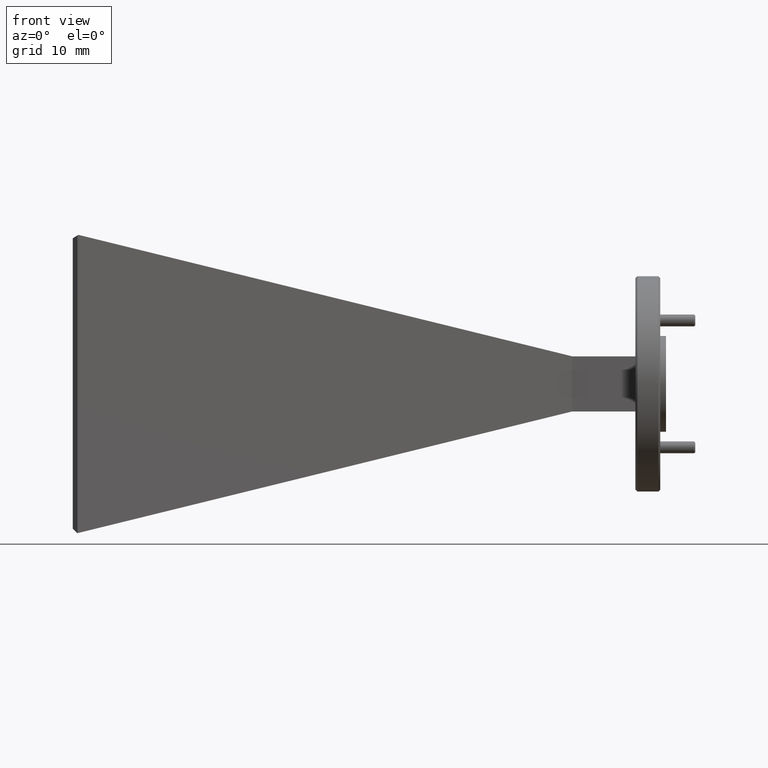
[diagram: clean part render]
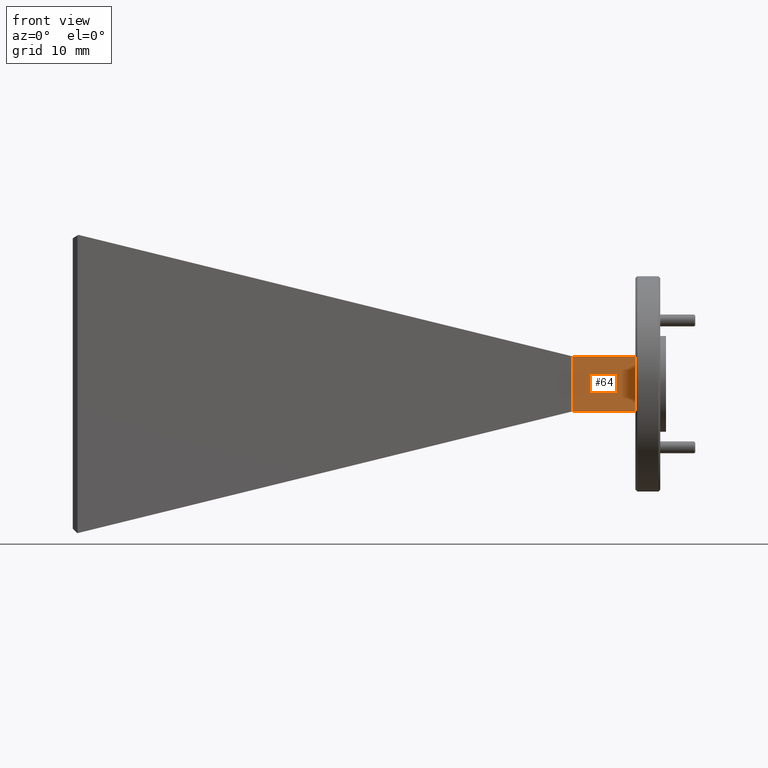
[diagram: same view with one face highlighted and labeled with its STEP entity id]
A machine part, front view. The second image highlights one B-rep face of the part: STEP entity #64.
In plain terms, the highlighted planar face has unit normal (0, 1, 0).
Its self-contained STEP definition (entity closure, byte-faithful):
#64 = ADVANCED_FACE ( 'NONE', ( #2309 ), #1609, .F. ) ;
#95 = VERTEX_POINT ( 'NONE', #1595 ) ;
#199 = DIRECTION ( 'NONE',  ( 1.000000000000000000, 0.0000000000000000000, -0.0000000000000000000 ) ) ;
#274 = VECTOR ( 'NONE', #444, 39.37007874015748100 ) ;
#292 = ORIENTED_EDGE ( 'NONE', *, *, #1197, .F. ) ;
#373 = ORIENTED_EDGE ( 'NONE', *, *, #530, .F. ) ;
#444 = DIRECTION ( 'NONE',  ( -0.0000000000000000000, -0.0000000000000000000, -1.000000000000000000 ) ) ;
#530 = EDGE_CURVE ( 'NONE', #95, #840, #1510, .T. ) ;
#721 = DIRECTION ( 'NONE',  ( -0.0000000000000000000, 0.0000000000000000000, -1.000000000000000000 ) ) ;
#734 = LINE ( 'NONE', #1914, #274 ) ;
#840 = VERTEX_POINT ( 'NONE', #1368 ) ;
#935 = CARTESIAN_POINT ( 'NONE',  ( 2.373564782623161400, 1.489671098379451700, 2.349166721494955200 ) ) ;
#1040 = VECTOR ( 'NONE', #2231, 39.37007874015748100 ) ;
#1055 = DIRECTION ( 'NONE',  ( 0.0000000000000000000, 1.000000000000000000, 0.0000000000000000000 ) ) ;
#1105 = CARTESIAN_POINT ( 'NONE',  ( 2.043564782623167100, 1.489671098379451900, 2.349166721494955600 ) ) ;
#1149 = EDGE_LOOP ( 'NONE', ( #2252, #1677, #373, #292 ) ) ;
#1172 = VERTEX_POINT ( 'NONE', #1105 ) ;
#1180 = VECTOR ( 'NONE', #721, 39.37007874015748100 ) ;
#1197 = EDGE_CURVE ( 'NONE', #1912, #95, #1923, .T. ) ;
#1368 = CARTESIAN_POINT ( 'NONE',  ( 2.373564782623161400, 1.489671098379451900, 2.349166721494955600 ) ) ;
#1386 = VECTOR ( 'NONE', #199, 39.37007874015748100 ) ;
#1410 = EDGE_CURVE ( 'NONE', #840, #1172, #2147, .T. ) ;
#1510 = LINE ( 'NONE', #935, #1180 ) ;
#1595 = CARTESIAN_POINT ( 'NONE',  ( 2.373564782623161400, 1.489671098379451900, 2.637166721494955500 ) ) ;
#1609 = PLANE ( 'NONE',  #2170 ) ;
#1623 = CARTESIAN_POINT ( 'NONE',  ( 2.043564782623161300, 1.489671098379451700, 2.349166721494955200 ) ) ;
#1635 = CARTESIAN_POINT ( 'NONE',  ( 2.043564782623166700, 1.489671098379451900, 2.637166721494955000 ) ) ;
#1662 = CARTESIAN_POINT ( 'NONE',  ( 2.043564782623161300, 1.489671098379451700, 2.637166721494955000 ) ) ;
#1677 = ORIENTED_EDGE ( 'NONE', *, *, #1410, .F. ) ;
#1685 = CARTESIAN_POINT ( 'NONE',  ( 2.043564782623161300, 1.489671098379451700, 2.349166721494955200 ) ) ;
#1912 = VERTEX_POINT ( 'NONE', #1635 ) ;
#1914 = CARTESIAN_POINT ( 'NONE',  ( 2.043564782623166200, 1.489671098379452300, 2.493166721494955300 ) ) ;
#1923 = LINE ( 'NONE', #1662, #1386 ) ;
#1987 = DIRECTION ( 'NONE',  ( 0.0000000000000000000, -0.0000000000000000000, 1.000000000000000000 ) ) ;
#2147 = LINE ( 'NONE', #1685, #1040 ) ;
#2159 = EDGE_CURVE ( 'NONE', #1912, #1172, #734, .T. ) ;
#2170 = AXIS2_PLACEMENT_3D ( 'NONE', #1623, #1055, #1987 ) ;
#2231 = DIRECTION ( 'NONE',  ( -1.000000000000000000, -0.0000000000000000000, 0.0000000000000000000 ) ) ;
#2252 = ORIENTED_EDGE ( 'NONE', *, *, #2159, .T. ) ;
#2309 = FACE_OUTER_BOUND ( 'NONE', #1149, .T. ) ;